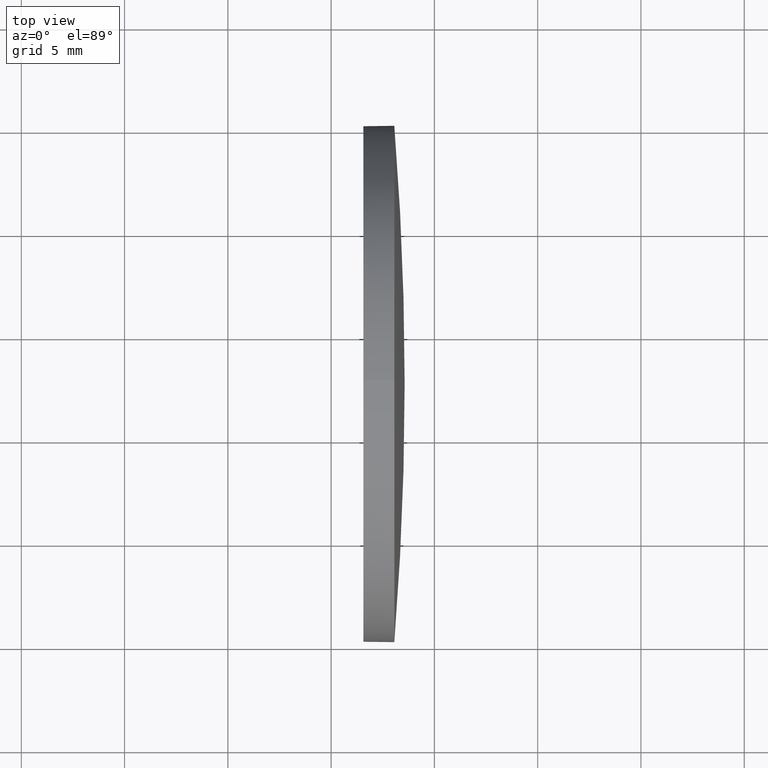
[diagram: clean part render]
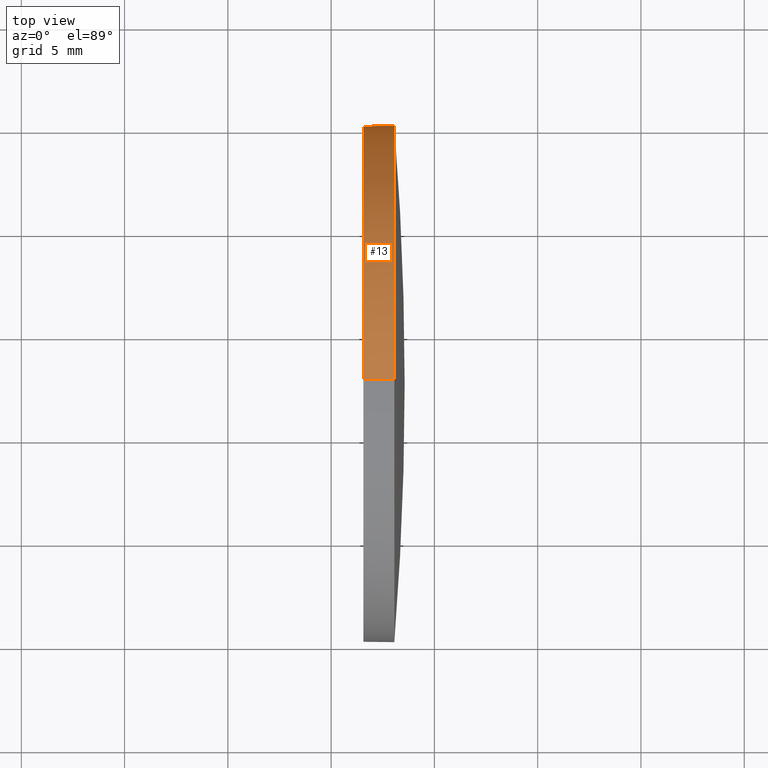
[diagram: same view with one face highlighted and labeled with its STEP entity id]
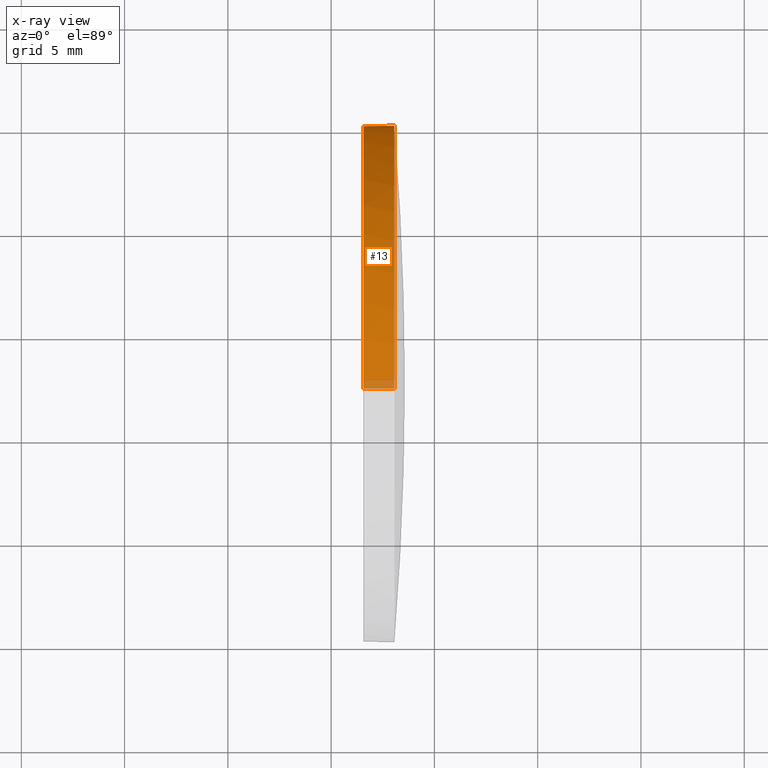
[diagram: x-ray of the same camera — body ghosted, the highlighted face saturated]
A machine part, top view. The second image highlights one B-rep face of the part: STEP entity #13.
The next image is the same camera in x-ray: the body ghosted, the highlighted face saturated — about 3% of this face is hidden behind the body in this view.
In plain terms, the highlighted cylindrical surface (partial cylindrical patch) has radius 12.5 mm, axis along (-1, -0, -0).
Its self-contained STEP definition (entity closure, byte-faithful):
#1 = CARTESIAN_POINT ( 'NONE',  ( 58.06002426272561900, 32.62964536423902500, 0.0000000000000000000 ) ) ;
#10 = ORIENTED_EDGE ( 'NONE', *, *, #110, .T. ) ;
#13 = ADVANCED_FACE ( 'NONE', ( #20 ), #27, .T. ) ;
#14 = DIRECTION ( 'NONE',  ( -1.000000000000000000, -0.0000000000000000000, -0.0000000000000000000 ) ) ;
#18 = DIRECTION ( 'NONE',  ( -1.000000000000000000, -0.0000000000000000000, -0.0000000000000000000 ) ) ;
#19 = EDGE_LOOP ( 'NONE', ( #112, #10, #185, #39, #161 ) ) ;
#20 = FACE_OUTER_BOUND ( 'NONE', #19, .T. ) ;
#24 = CARTESIAN_POINT ( 'NONE',  ( 58.06002426272561900, 45.12964536423902500, 0.0000000000000000000 ) ) ;
#27 = CYLINDRICAL_SURFACE ( 'NONE', #132, 12.49999999999999600 ) ;
#39 = ORIENTED_EDGE ( 'NONE', *, *, #141, .F. ) ;
#40 = LINE ( 'NONE', #89, #173 ) ;
#42 = CARTESIAN_POINT ( 'NONE',  ( 58.06002426272561900, 32.62964536423902500, -12.49999999999999600 ) ) ;
#53 = DIRECTION ( 'NONE',  ( -1.000000000000000000, -0.0000000000000000000, -0.0000000000000000000 ) ) ;
#54 = VECTOR ( 'NONE', #53, 1000.000000000000000 ) ;
#58 = DIRECTION ( 'NONE',  ( -1.000000000000000000, -0.0000000000000000000, -0.0000000000000000000 ) ) ;
#59 = EDGE_CURVE ( 'NONE', #119, #168, #162, .T. ) ;
#63 = VERTEX_POINT ( 'NONE', #129 ) ;
#67 = DIRECTION ( 'NONE',  ( 0.0000000000000000000, 0.0000000000000000000, 1.000000000000000000 ) ) ;
#70 = EDGE_CURVE ( 'NONE', #168, #98, #174, .T. ) ;
#71 = DIRECTION ( 'NONE',  ( 0.0000000000000000000, 0.0000000000000000000, 1.000000000000000000 ) ) ;
#84 = VERTEX_POINT ( 'NONE', #135 ) ;
#85 = CARTESIAN_POINT ( 'NONE',  ( 54.53091668428863400, 32.62964536423902500, 0.0000000000000000000 ) ) ;
#89 = CARTESIAN_POINT ( 'NONE',  ( 54.53091668428863400, 32.62964536423902500, 12.49999999999999600 ) ) ;
#91 = LINE ( 'NONE', #150, #54 ) ;
#98 = VERTEX_POINT ( 'NONE', #42 ) ;
#101 = DIRECTION ( 'NONE',  ( 0.0000000000000000000, 0.0000000000000000000, 1.000000000000000000 ) ) ;
#110 = EDGE_CURVE ( 'NONE', #98, #84, #91, .T. ) ;
#112 = ORIENTED_EDGE ( 'NONE', *, *, #70, .T. ) ;
#113 = EDGE_CURVE ( 'NONE', #63, #84, #137, .T. ) ;
#116 = CARTESIAN_POINT ( 'NONE',  ( 58.06002426272561900, 32.62964536423902500, 0.0000000000000000000 ) ) ;
#117 = DIRECTION ( 'NONE',  ( 0.0000000000000000000, 0.0000000000000000000, 1.000000000000000000 ) ) ;
#119 = VERTEX_POINT ( 'NONE', #134 ) ;
#129 = CARTESIAN_POINT ( 'NONE',  ( 56.56002426272561900, 32.62964536423902500, 12.49999999999999600 ) ) ;
#132 = AXIS2_PLACEMENT_3D ( 'NONE', #85, #14, #67 ) ;
#134 = CARTESIAN_POINT ( 'NONE',  ( 58.06002426272561900, 32.62964536423902500, 12.49999999999999600 ) ) ;
#135 = CARTESIAN_POINT ( 'NONE',  ( 56.56002426272561900, 32.62964536423902500, -12.49999999999999600 ) ) ;
#136 = AXIS2_PLACEMENT_3D ( 'NONE', #1, #159, #101 ) ;
#137 = CIRCLE ( 'NONE', #180, 12.49999999999999600 ) ;
#138 = CARTESIAN_POINT ( 'NONE',  ( 56.56002426272561900, 32.62964536423902500, 0.0000000000000000000 ) ) ;
#141 = EDGE_CURVE ( 'NONE', #119, #63, #40, .T. ) ;
#150 = CARTESIAN_POINT ( 'NONE',  ( 54.53091668428863400, 32.62964536423902500, -12.49999999999999600 ) ) ;
#151 = AXIS2_PLACEMENT_3D ( 'NONE', #116, #18, #117 ) ;
#159 = DIRECTION ( 'NONE',  ( -1.000000000000000000, -0.0000000000000000000, -0.0000000000000000000 ) ) ;
#161 = ORIENTED_EDGE ( 'NONE', *, *, #59, .T. ) ;
#162 = CIRCLE ( 'NONE', #136, 12.49999999999999600 ) ;
#167 = DIRECTION ( 'NONE',  ( -1.000000000000000000, -0.0000000000000000000, -0.0000000000000000000 ) ) ;
#168 = VERTEX_POINT ( 'NONE', #24 ) ;
#173 = VECTOR ( 'NONE', #167, 1000.000000000000000 ) ;
#174 = CIRCLE ( 'NONE', #151, 12.49999999999999600 ) ;
#180 = AXIS2_PLACEMENT_3D ( 'NONE', #138, #58, #71 ) ;
#185 = ORIENTED_EDGE ( 'NONE', *, *, #113, .F. ) ;